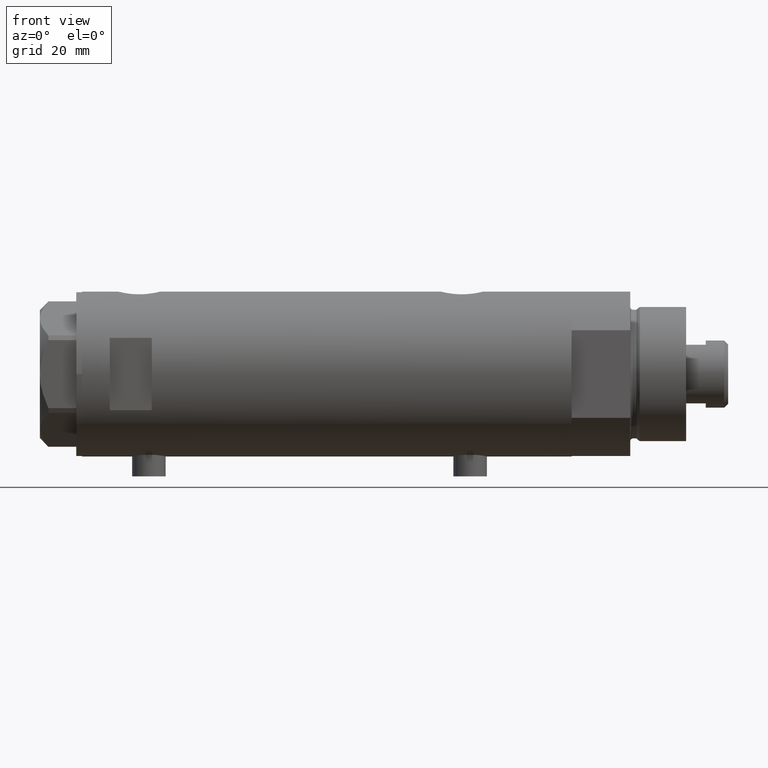
[diagram: clean part render]
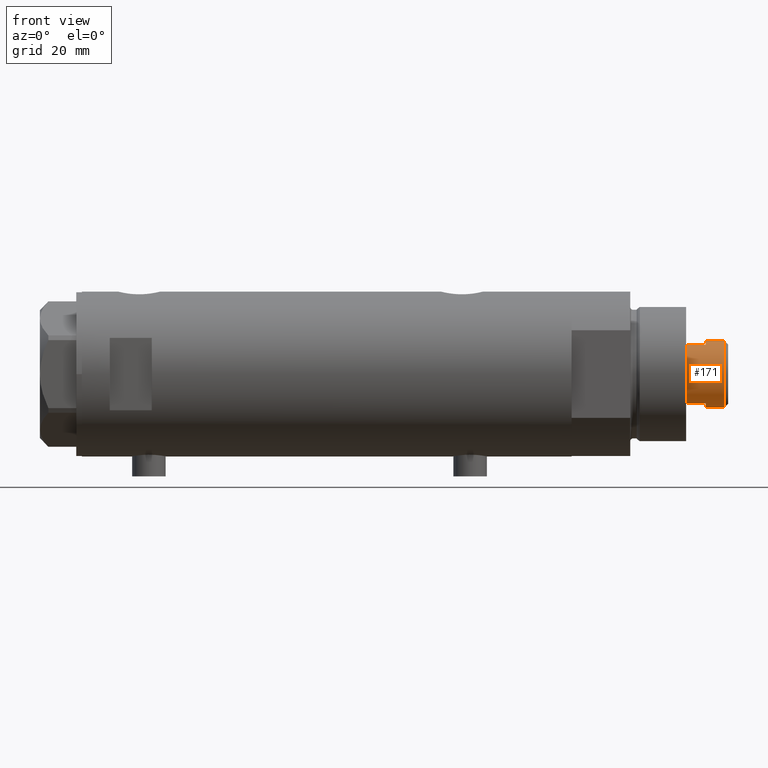
[diagram: same view with one face highlighted and labeled with its STEP entity id]
A machine part, front view. The second image highlights one B-rep face of the part: STEP entity #171.
In plain terms, the highlighted cylindrical surface (edge-blend (fillet) strip) has radius 12 mm, axis along (-1, -0, 0).
Its self-contained STEP definition (entity closure, byte-faithful):
#52 = EDGE_CURVE ( 'NONE', #3038, #1157, #1150, .T. ) ;
#98 = ORIENTED_EDGE ( 'NONE', *, *, #820, .T. ) ;
#112 = CARTESIAN_POINT ( 'NONE',  ( 10.48861764008966446, -5.829999999999997407, 199.7000000000000171 ) ) ;
#166 = EDGE_LOOP ( 'NONE', ( #3096, #695, #464, #992, #1260, #3556, #3552, #98 ) ) ;
#169 = CARTESIAN_POINT ( 'NONE',  ( 0.000000000000000000, 0.000000000000000000, 199.7000000000000171 ) ) ;
#171 = ADVANCED_FACE ( 'NONE', ( #910 ), #256, .T. ) ;
#248 = VERTEX_POINT ( 'NONE', #1324 ) ;
#249 = LINE ( 'NONE', #3014, #4164 ) ;
#256 = CYLINDRICAL_SURFACE ( 'NONE', #3515, 12.00000000000000000 ) ;
#338 = AXIS2_PLACEMENT_3D ( 'NONE', #169, #4299, #990 ) ;
#394 = CARTESIAN_POINT ( 'NONE',  ( 0.000000000000000000, 0.000000000000000000, 199.7000000000000171 ) ) ;
#464 = ORIENTED_EDGE ( 'NONE', *, *, #2929, .T. ) ;
#636 = CIRCLE ( 'NONE', #2947, 12.00000000000000000 ) ;
#695 = ORIENTED_EDGE ( 'NONE', *, *, #52, .T. ) ;
#789 = EDGE_CURVE ( 'NONE', #248, #3925, #636, .T. ) ;
#820 = EDGE_CURVE ( 'NONE', #1898, #2842, #3464, .T. ) ;
#910 = FACE_OUTER_BOUND ( 'NONE', #166, .T. ) ;
#990 = DIRECTION ( 'NONE',  ( 1.000000000000000000, 0.000000000000000000, 0.000000000000000000 ) ) ;
#992 = ORIENTED_EDGE ( 'NONE', *, *, #2252, .T. ) ;
#1011 = VECTOR ( 'NONE', #1855, 1000.000000000000000 ) ;
#1016 = VECTOR ( 'NONE', #1509, 1000.000000000000000 ) ;
#1118 = CARTESIAN_POINT ( 'NONE',  ( 0.000000000000000000, 0.000000000000000000, 206.2999999999999829 ) ) ;
#1150 = CIRCLE ( 'NONE', #4293, 12.00000000000000000 ) ;
#1157 = VERTEX_POINT ( 'NONE', #3782 ) ;
#1260 = ORIENTED_EDGE ( 'NONE', *, *, #3105, .T. ) ;
#1301 = DIRECTION ( 'NONE',  ( -1.000000000000000000, 0.000000000000000000, 0.000000000000000000 ) ) ;
#1324 = CARTESIAN_POINT ( 'NONE',  ( -10.48861764008966269, -5.829999999999964544, 192.7000000000000171 ) ) ;
#1509 = DIRECTION ( 'NONE',  ( -0.000000000000000000, -0.000000000000000000, -1.000000000000000000 ) ) ;
#1590 = VECTOR ( 'NONE', #1682, 1000.000000000000000 ) ;
#1656 = AXIS2_PLACEMENT_3D ( 'NONE', #394, #1766, #2547 ) ;
#1682 = DIRECTION ( 'NONE',  ( -0.000000000000000000, -0.000000000000000000, -1.000000000000000000 ) ) ;
#1766 = DIRECTION ( 'NONE',  ( 0.000000000000000000, 0.000000000000000000, 1.000000000000000000 ) ) ;
#1817 = LINE ( 'NONE', #3892, #1011 ) ;
#1819 = CARTESIAN_POINT ( 'NONE',  ( 12.00000000000000355, 1.469576158976824342E-15, 199.7000000000000171 ) ) ;
#1855 = DIRECTION ( 'NONE',  ( -0.000000000000000000, -0.000000000000000000, -1.000000000000000000 ) ) ;
#1898 = VERTEX_POINT ( 'NONE', #3975 ) ;
#1923 = DIRECTION ( 'NONE',  ( -0.000000000000000000, -0.000000000000000000, -1.000000000000000000 ) ) ;
#2146 = CARTESIAN_POINT ( 'NONE',  ( 12.00000000000000000, 1.469576158976823947E-15, 206.2999999999999829 ) ) ;
#2150 = VERTEX_POINT ( 'NONE', #3428 ) ;
#2252 = EDGE_CURVE ( 'NONE', #2150, #3875, #2290, .T. ) ;
#2290 = CIRCLE ( 'NONE', #338, 12.00000000000000178 ) ;
#2488 = DIRECTION ( 'NONE',  ( 0.000000000000000000, 0.000000000000000000, -1.000000000000000000 ) ) ;
#2547 = DIRECTION ( 'NONE',  ( 1.000000000000000000, 0.000000000000000000, 0.000000000000000000 ) ) ;
#2683 = CARTESIAN_POINT ( 'NONE',  ( 12.00000000000000000, 1.469576158976823947E-15, 199.7000000000000171 ) ) ;
#2757 = CARTESIAN_POINT ( 'NONE',  ( 0.000000000000000000, 0.000000000000000000, 192.7000000000000171 ) ) ;
#2842 = VERTEX_POINT ( 'NONE', #1819 ) ;
#2929 = EDGE_CURVE ( 'NONE', #1157, #2150, #1817, .T. ) ;
#2947 = AXIS2_PLACEMENT_3D ( 'NONE', #2757, #3433, #4127 ) ;
#3014 = CARTESIAN_POINT ( 'NONE',  ( -10.48861764008966091, -5.830000000000000959, 199.7000000000000171 ) ) ;
#3038 = VERTEX_POINT ( 'NONE', #2146 ) ;
#3096 = ORIENTED_EDGE ( 'NONE', *, *, #3797, .F. ) ;
#3105 = EDGE_CURVE ( 'NONE', #3875, #248, #249, .T. ) ;
#3183 = CARTESIAN_POINT ( 'NONE',  ( 10.48861764008966091, -5.829999999999960103, 192.7000000000000171 ) ) ;
#3217 = LINE ( 'NONE', #112, #1016 ) ;
#3263 = LINE ( 'NONE', #2683, #1590 ) ;
#3419 = EDGE_CURVE ( 'NONE', #1898, #3925, #3217, .T. ) ;
#3428 = CARTESIAN_POINT ( 'NONE',  ( -12.00000000000000355, 0.000000000000000000, 199.7000000000000171 ) ) ;
#3433 = DIRECTION ( 'NONE',  ( 0.000000000000000000, 0.000000000000000000, 1.000000000000000000 ) ) ;
#3464 = CIRCLE ( 'NONE', #1656, 12.00000000000000178 ) ;
#3515 = AXIS2_PLACEMENT_3D ( 'NONE', #3658, #1923, #1301 ) ;
#3552 = ORIENTED_EDGE ( 'NONE', *, *, #3419, .F. ) ;
#3556 = ORIENTED_EDGE ( 'NONE', *, *, #789, .T. ) ;
#3658 = CARTESIAN_POINT ( 'NONE',  ( 0.000000000000000000, 0.000000000000000000, 199.7000000000000171 ) ) ;
#3732 = CARTESIAN_POINT ( 'NONE',  ( -10.48861764008966091, -5.830000000000003624, 199.7000000000000171 ) ) ;
#3782 = CARTESIAN_POINT ( 'NONE',  ( -12.00000000000000000, 0.000000000000000000, 206.2999999999999829 ) ) ;
#3797 = EDGE_CURVE ( 'NONE', #3038, #2842, #3263, .T. ) ;
#3868 = DIRECTION ( 'NONE',  ( 1.000000000000000000, 0.000000000000000000, 0.000000000000000000 ) ) ;
#3875 = VERTEX_POINT ( 'NONE', #3732 ) ;
#3892 = CARTESIAN_POINT ( 'NONE',  ( -12.00000000000000000, 0.000000000000000000, 199.7000000000000171 ) ) ;
#3925 = VERTEX_POINT ( 'NONE', #3183 ) ;
#3975 = CARTESIAN_POINT ( 'NONE',  ( 10.48861764008966446, -5.829999999999997407, 199.7000000000000171 ) ) ;
#4007 = DIRECTION ( 'NONE',  ( -0.000000000000000000, -0.000000000000000000, -1.000000000000000000 ) ) ;
#4127 = DIRECTION ( 'NONE',  ( 1.000000000000000000, 0.000000000000000000, 0.000000000000000000 ) ) ;
#4164 = VECTOR ( 'NONE', #4007, 1000.000000000000000 ) ;
#4293 = AXIS2_PLACEMENT_3D ( 'NONE', #1118, #2488, #3868 ) ;
#4299 = DIRECTION ( 'NONE',  ( 0.000000000000000000, 0.000000000000000000, 1.000000000000000000 ) ) ;